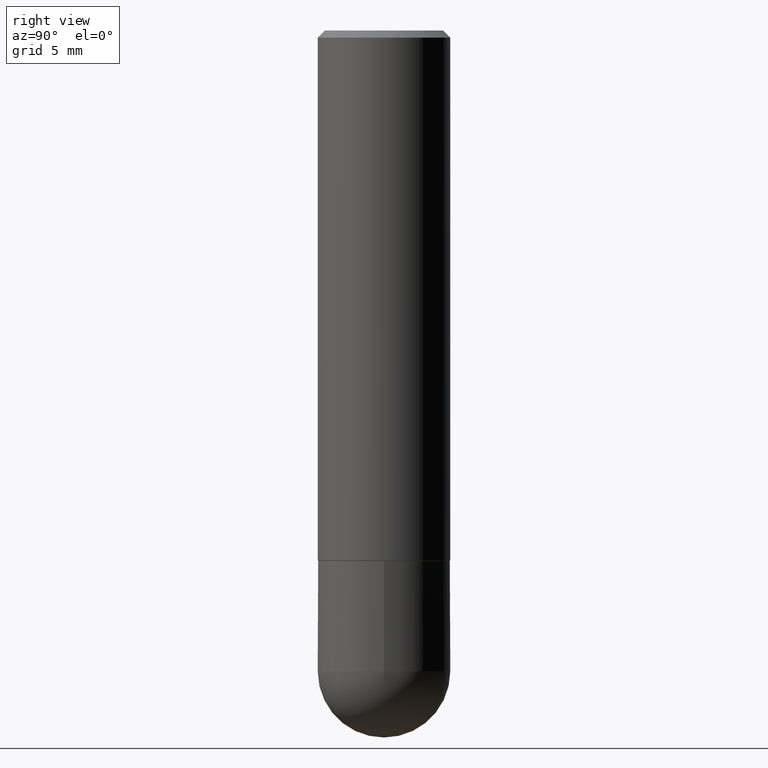
[diagram: clean part render]
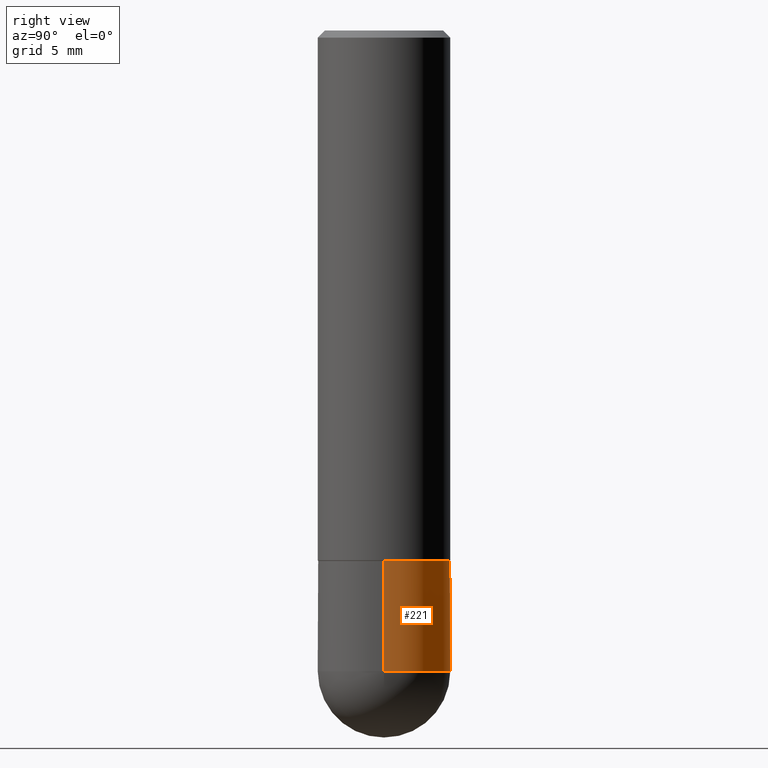
[diagram: same view with one face highlighted and labeled with its STEP entity id]
A machine part, right view. The second image highlights one B-rep face of the part: STEP entity #221.
In plain terms, the highlighted cylindrical surface (partial cylindrical patch) has radius 4.7625 mm, axis along (-0, 0, 1).
Its self-contained STEP definition (entity closure, byte-faithful):
#8 = LINE ( 'NONE', #157, #295 ) ;
#10 = AXIS2_PLACEMENT_3D ( 'NONE', #207, #116, #376 ) ;
#23 = EDGE_LOOP ( 'NONE', ( #166, #234, #291, #27, #211 ) ) ;
#26 = CYLINDRICAL_SURFACE ( 'NONE', #10, 0.1874999999999999722 ) ;
#27 = ORIENTED_EDGE ( 'NONE', *, *, #49, .F. ) ;
#35 = VECTOR ( 'NONE', #142, 39.37007874015748143 ) ;
#49 = EDGE_CURVE ( 'NONE', #92, #55, #321, .T. ) ;
#55 = VERTEX_POINT ( 'NONE', #261 ) ;
#73 = CIRCLE ( 'NONE', #282, 0.1875000000000000278 ) ;
#81 = CARTESIAN_POINT ( 'NONE',  ( 0.1874999999999999722, -7.092071469525134744E-15, -1.812499999999999778 ) ) ;
#82 = CIRCLE ( 'NONE', #103, 0.1874999999999999722 ) ;
#84 = CARTESIAN_POINT ( 'NONE',  ( 4.432412211210560082E-29, -6.328309926653201295E-15, -1.812499999999999778 ) ) ;
#92 = VERTEX_POINT ( 'NONE', #81 ) ;
#103 = AXIS2_PLACEMENT_3D ( 'NONE', #104, #254, #391 ) ;
#104 = CARTESIAN_POINT ( 'NONE',  ( 4.432412211210560082E-29, -6.328309926653201295E-15, -1.812499999999999778 ) ) ;
#116 = DIRECTION ( 'NONE',  ( -2.445468806185136597E-29, 3.491481338843145583E-15, 1.000000000000000000 ) ) ;
#128 = DIRECTION ( 'NONE',  ( 1.000000000000000000, -6.982962677686266711E-15, 0.000000000000000000 ) ) ;
#138 = EDGE_CURVE ( 'NONE', #389, #330, #82, .T. ) ;
#142 = DIRECTION ( 'NONE',  ( -2.445468806185136877E-29, 3.491481338843145188E-15, 1.000000000000000000 ) ) ;
#148 = EDGE_CURVE ( 'NONE', #92, #389, #392, .T. ) ;
#157 = CARTESIAN_POINT ( 'NONE',  ( -0.1874999999999999722, 1.332267629550187651E-15, -9.223003294227946589E-30 ) ) ;
#161 = DIRECTION ( 'NONE',  ( -2.445468806185136877E-29, 3.491481338843145188E-15, 1.000000000000000000 ) ) ;
#163 = CARTESIAN_POINT ( 'NONE',  ( 1.309305502066218396E-15, 0.1874999999999935607, -1.812500000000000444 ) ) ;
#166 = ORIENTED_EDGE ( 'NONE', *, *, #138, .T. ) ;
#189 = CARTESIAN_POINT ( 'NONE',  ( -0.1875000000000000278, -4.450498337908771098E-15, -1.499999999999999778 ) ) ;
#207 = CARTESIAN_POINT ( 'NONE',  ( 0.000000000000000000, 0.000000000000000000, 0.000000000000000000 ) ) ;
#211 = ORIENTED_EDGE ( 'NONE', *, *, #148, .T. ) ;
#221 = ADVANCED_FACE ( 'NONE', ( #344 ), #26, .T. ) ;
#222 = DIRECTION ( 'NONE',  ( -2.445468806185136597E-29, 3.491481338843145583E-15, 1.000000000000000000 ) ) ;
#233 = CARTESIAN_POINT ( 'NONE',  ( -0.1874999999999999722, -4.450498337908771887E-15, -1.812499999999999778 ) ) ;
#234 = ORIENTED_EDGE ( 'NONE', *, *, #280, .T. ) ;
#254 = DIRECTION ( 'NONE',  ( -2.445468806185136597E-29, 3.491481338843145583E-15, 1.000000000000000000 ) ) ;
#261 = CARTESIAN_POINT ( 'NONE',  ( 0.1875000000000000278, -6.546527510330893185E-15, -1.499999999999999778 ) ) ;
#277 = EDGE_CURVE ( 'NONE', #55, #411, #73, .T. ) ;
#280 = EDGE_CURVE ( 'NONE', #330, #411, #8, .T. ) ;
#282 = AXIS2_PLACEMENT_3D ( 'NONE', #388, #309, #128 ) ;
#291 = ORIENTED_EDGE ( 'NONE', *, *, #277, .F. ) ;
#295 = VECTOR ( 'NONE', #161, 39.37007874015748143 ) ;
#309 = DIRECTION ( 'NONE',  ( -2.445468806185136597E-29, 3.491481338843145583E-15, 1.000000000000000000 ) ) ;
#321 = LINE ( 'NONE', #361, #35 ) ;
#324 = AXIS2_PLACEMENT_3D ( 'NONE', #84, #222, #396 ) ;
#330 = VERTEX_POINT ( 'NONE', #233 ) ;
#344 = FACE_OUTER_BOUND ( 'NONE', #23, .T. ) ;
#361 = CARTESIAN_POINT ( 'NONE',  ( 0.1874999999999999722, -1.309305502066174811E-15, 9.142831454617378210E-30 ) ) ;
#376 = DIRECTION ( 'NONE',  ( 1.000000000000000000, -6.982962677686266711E-15, 4.876176775795935793E-29 ) ) ;
#388 = CARTESIAN_POINT ( 'NONE',  ( 3.668203209277704335E-29, -5.237222008264717388E-15, -1.499999999999999778 ) ) ;
#389 = VERTEX_POINT ( 'NONE', #163 ) ;
#391 = DIRECTION ( 'NONE',  ( 1.000000000000000000, -6.982962677686263555E-15, 0.000000000000000000 ) ) ;
#392 = CIRCLE ( 'NONE', #324, 0.1874999999999999722 ) ;
#396 = DIRECTION ( 'NONE',  ( 1.000000000000000000, -6.982962677686263555E-15, 0.000000000000000000 ) ) ;
#411 = VERTEX_POINT ( 'NONE', #189 ) ;